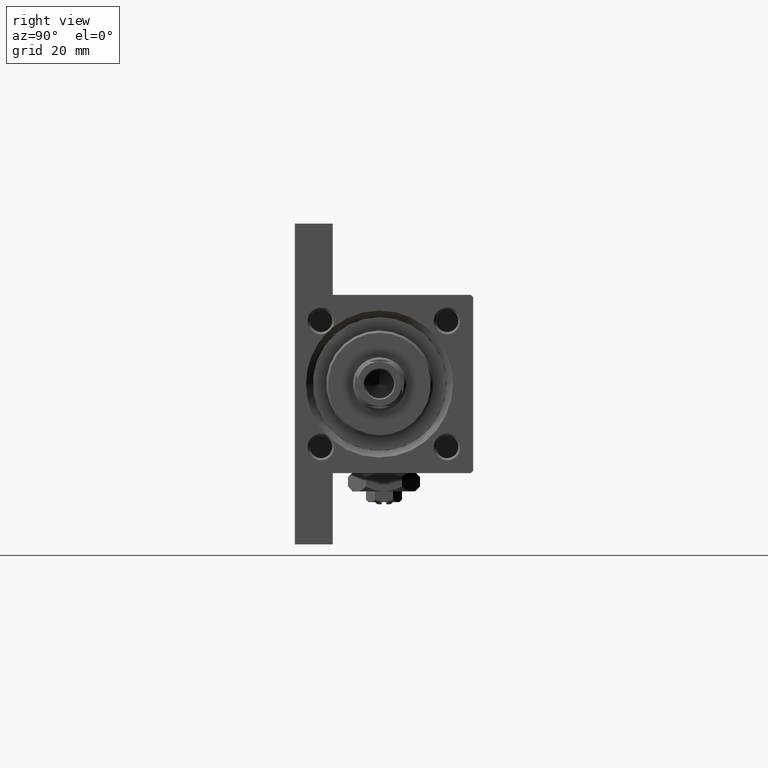
[diagram: clean part render]
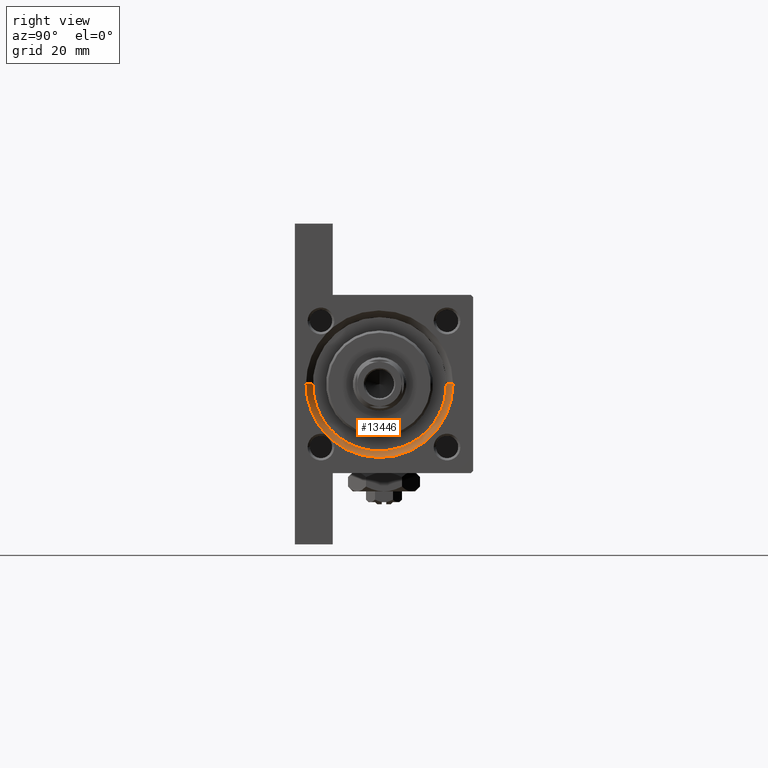
[diagram: same view with one face highlighted and labeled with its STEP entity id]
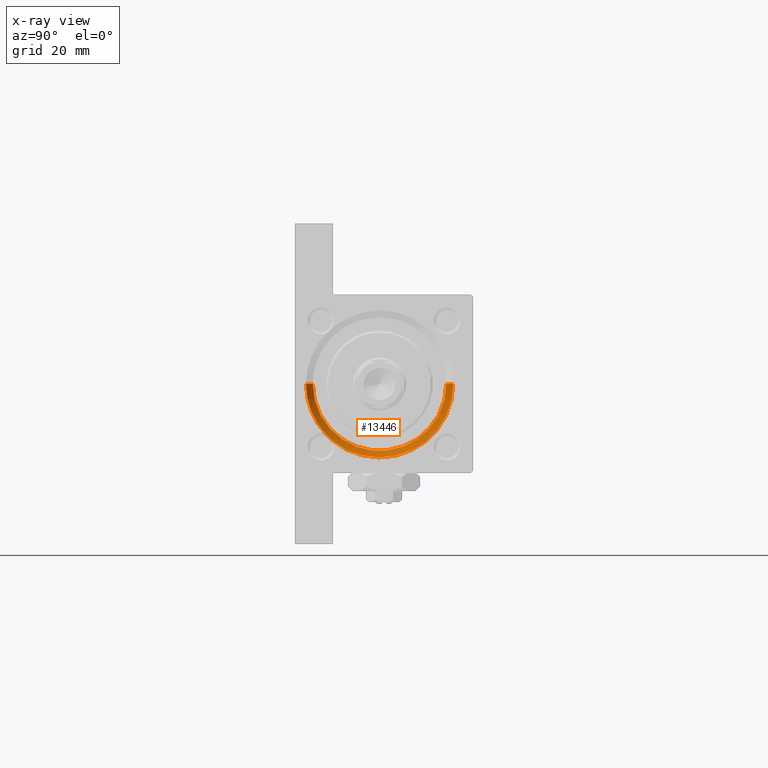
[diagram: x-ray of the same camera — body ghosted, the highlighted face saturated]
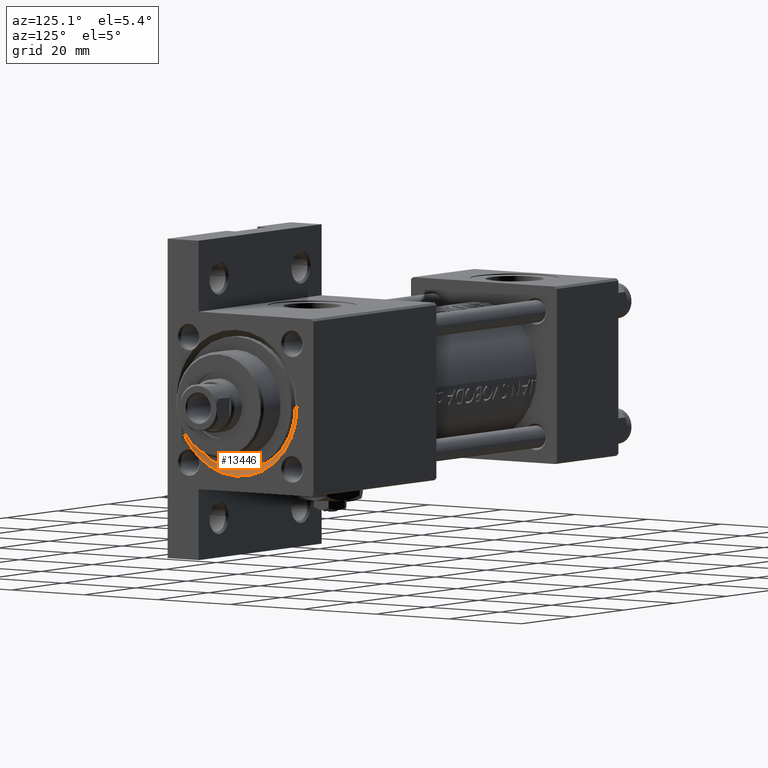
[diagram: same view with one face highlighted and labeled with its STEP entity id]
A machine part, right view. The second image highlights one B-rep face of the part: STEP entity #13446.
The next image is the same camera in x-ray: the body ghosted, the highlighted face saturated — about 0% of this face is hidden behind the body in this view.
A second angle (auxiliary view) of the same face is appended — the face is thin or edge-on in the first view.
In plain terms, the highlighted conical surface has half-angle 45 deg.
Its self-contained STEP definition (entity closure, byte-faithful):
#2478 = CARTESIAN_POINT ( 'NONE',  ( 118.9086984327258136, 11.80024087539722011, -12.40619927413898971 ) ) ;
#3252 = FACE_OUTER_BOUND ( 'NONE', #30063, .T. ) ;
#4045 = CARTESIAN_POINT ( 'NONE',  ( 119.0000000000000142, 0.000000000000000000, -17.50000000000001421 ) ) ;
#5470 = EDGE_CURVE ( 'NONE', #15799, #7802, #20948, .T. ) ;
#7692 = CARTESIAN_POINT ( 'NONE',  ( 117.5000000000000000, 0.000000000000000000, -16.00000000000000000 ) ) ;
#7802 = VERTEX_POINT ( 'NONE', #28212 ) ;
#8191 = EDGE_CURVE ( 'NONE', #20917, #14125, #23335, .T. ) ;
#8925 = DIRECTION ( 'NONE',  ( 0.000000000000000000, 0.000000000000000000, 1.000000000000000000 ) ) ;
#9942 = AXIS2_PLACEMENT_3D ( 'NONE', #26423, #10993, #22450 ) ;
#10952 = VECTOR ( 'NONE', #45839, 1000.000000000000114 ) ;
#10993 = DIRECTION ( 'NONE',  ( 1.000000000000000000, 0.000000000000000000, 0.000000000000000000 ) ) ;
#11559 = VERTEX_POINT ( 'NONE', #45091 ) ;
#13446 = ADVANCED_FACE ( 'NONE', ( #3252 ), #33881, .F. ) ;
#13498 = ORIENTED_EDGE ( 'NONE', *, *, #16164, .T. ) ;
#13719 = ORIENTED_EDGE ( 'NONE', *, *, #29203, .F. ) ;
#14125 = VERTEX_POINT ( 'NONE', #4045 ) ;
#14207 = CARTESIAN_POINT ( 'NONE',  ( 119.0000000000000142, 11.41741110086830346, -12.91187322606187315 ) ) ;
#15799 = VERTEX_POINT ( 'NONE', #28482 ) ;
#16164 = EDGE_CURVE ( 'NONE', #20917, #39691, #20738, .T. ) ;
#18954 = CARTESIAN_POINT ( 'NONE',  ( 119.0000000000000142, 11.41741110086830346, -12.91187322606187315 ) ) ;
#20738 = B_SPLINE_CURVE_WITH_KNOTS ( 'NONE', 3,
 ( #14207, #29154, #2478, #38320, #45559, #32894 ),
 .UNSPECIFIED., .F., .F.,
 ( 4, 2, 4 ),
 ( 0.000000000000000000, 0.0009549214274699158699, 0.001909842854939831740 ),
 .UNSPECIFIED. ) ;
#20917 = VERTEX_POINT ( 'NONE', #18954 ) ;
#20948 = CIRCLE ( 'NONE', #27323, 15.00000000000000000 ) ;
#21251 = DIRECTION ( 'NONE',  ( 0.000000000000000000, 0.000000000000000000, 1.000000000000000000 ) ) ;
#21424 = ORIENTED_EDGE ( 'NONE', *, *, #5470, .F. ) ;
#21751 = DIRECTION ( 'NONE',  ( 1.000000000000000000, 0.000000000000000000, 0.000000000000000000 ) ) ;
#21939 = DIRECTION ( 'NONE',  ( 0.7071067811865474617, 8.659560562354932858E-17, 0.7071067811865474617 ) ) ;
#22012 = EDGE_CURVE ( 'NONE', #15799, #14125, #37372, .T. ) ;
#22450 = DIRECTION ( 'NONE',  ( 0.000000000000000000, 0.000000000000000000, -1.000000000000000000 ) ) ;
#23335 = CIRCLE ( 'NONE', #32856, 16.50000000000001421 ) ;
#24623 = CARTESIAN_POINT ( 'NONE',  ( 119.0000000000000142, 0.000000000000000000, -1.000000000000000888 ) ) ;
#25648 = ORIENTED_EDGE ( 'NONE', *, *, #8191, .F. ) ;
#26423 = CARTESIAN_POINT ( 'NONE',  ( 117.5000000000000000, 0.000000000000000000, -1.000000000000000888 ) ) ;
#27323 = AXIS2_PLACEMENT_3D ( 'NONE', #28495, #21751, #21251 ) ;
#28212 = CARTESIAN_POINT ( 'NONE',  ( 117.5000000000000000, 1.836970198721029589E-15, 13.99999999999999822 ) ) ;
#28482 = CARTESIAN_POINT ( 'NONE',  ( 117.5000000000000000, 0.000000000000000000, -16.00000000000000000 ) ) ;
#28495 = CARTESIAN_POINT ( 'NONE',  ( 117.5000000000000000, 0.000000000000000000, -1.000000000000000888 ) ) ;
#29154 = CARTESIAN_POINT ( 'NONE',  ( 118.9399059431251260, 11.60070403927867666, -12.65294814269170942 ) ) ;
#29203 = EDGE_CURVE ( 'NONE', #7802, #11559, #48635, .T. ) ;
#29411 = CARTESIAN_POINT ( 'NONE',  ( 117.5000000000000000, 1.836970198721029589E-15, 13.99999999999999822 ) ) ;
#30063 = EDGE_LOOP ( 'NONE', ( #13719, #21424, #30374, #25648, #13498, #34148 ) ) ;
#30374 = ORIENTED_EDGE ( 'NONE', *, *, #22012, .T. ) ;
#32321 = CARTESIAN_POINT ( 'NONE',  ( 119.0000000000000142, 0.000000000000000000, -1.000000000000000888 ) ) ;
#32856 = AXIS2_PLACEMENT_3D ( 'NONE', #32321, #43317, #35824 ) ;
#32894 = CARTESIAN_POINT ( 'NONE',  ( 119.0000000000000142, 12.71526989445523803, -11.51531794627060989 ) ) ;
#32969 = CARTESIAN_POINT ( 'NONE',  ( 119.0000000000000142, 12.71526989445523803, -11.51531794627060989 ) ) ;
#33819 = VECTOR ( 'NONE', #21939, 1000.000000000000114 ) ;
#33881 = CONICAL_SURFACE ( 'NONE', #9942, 15.00000000000000000, 0.7853981633974482790 ) ;
#34148 = ORIENTED_EDGE ( 'NONE', *, *, #45574, .F. ) ;
#34210 = CIRCLE ( 'NONE', #43739, 16.50000000000001421 ) ;
#35824 = DIRECTION ( 'NONE',  ( 0.000000000000000000, 0.000000000000000000, 1.000000000000000000 ) ) ;
#37372 = LINE ( 'NONE', #7692, #10952 ) ;
#38320 = CARTESIAN_POINT ( 'NONE',  ( 118.9082653050944600, 12.23416909603873748, -11.93882805397925928 ) ) ;
#39691 = VERTEX_POINT ( 'NONE', #32969 ) ;
#43092 = DIRECTION ( 'NONE',  ( -1.000000000000000000, -0.000000000000000000, -0.000000000000000000 ) ) ;
#43317 = DIRECTION ( 'NONE',  ( -1.000000000000000000, -0.000000000000000000, -0.000000000000000000 ) ) ;
#43739 = AXIS2_PLACEMENT_3D ( 'NONE', #24623, #43092, #8925 ) ;
#45091 = CARTESIAN_POINT ( 'NONE',  ( 119.0000000000000142, 2.020667218593134678E-15, 15.50000000000001421 ) ) ;
#45559 = CARTESIAN_POINT ( 'NONE',  ( 118.9398626170885933, 12.47027226269688605, -11.71720857897606116 ) ) ;
#45574 = EDGE_CURVE ( 'NONE', #11559, #39691, #34210, .T. ) ;
#45839 = DIRECTION ( 'NONE',  ( 0.7071067811865474617, 0.000000000000000000, -0.7071067811865474617 ) ) ;
#48635 = LINE ( 'NONE', #29411, #33819 ) ;